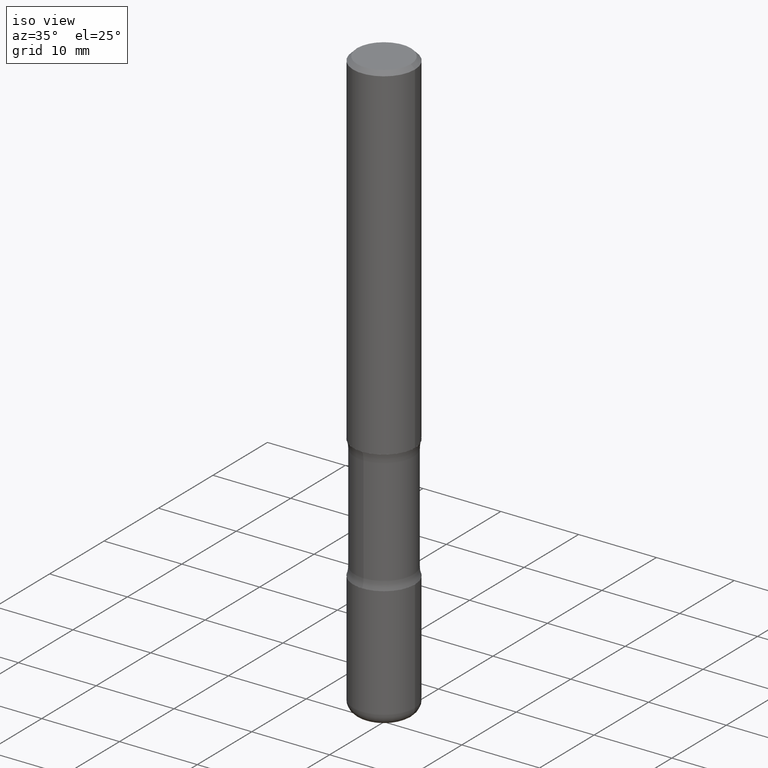
[diagram: clean part render]
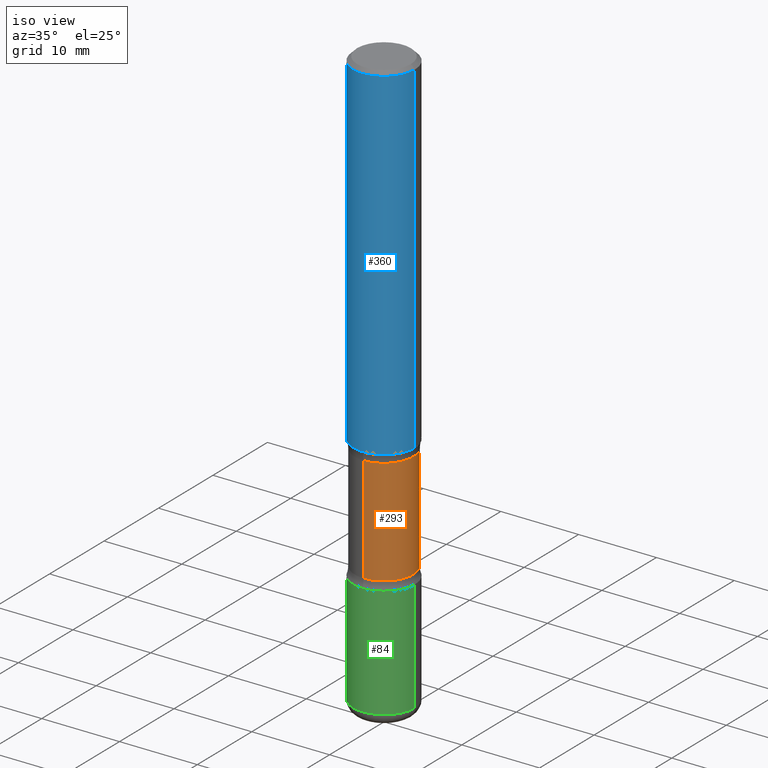
[diagram: same view with three faces highlighted in distinct colors, each labeled with its STEP entity id]
A machine part, iso view with three faces highlighted in distinct colors.
Their STEP definitions:

[orange] entity #293 — the highlighted cylindrical surface (edge-blend (fillet) strip) has radius 3.7703 mm, axis along (0, -0, -1).
#12 = CARTESIAN_POINT ( 'NONE',  ( 5.698202263795362163E-29, -8.145282435205020267E-15, -2.331501840915390478 ) ) ;
#18 = AXIS2_PLACEMENT_3D ( 'NONE', #234, #329, #29 ) ;
#23 = VERTEX_POINT ( 'NONE', #258 ) ;
#29 = DIRECTION ( 'NONE',  ( 6.982962677686266711E-15, 1.000000000000000000, -3.680805717779217644E-15 ) ) ;
#42 = CARTESIAN_POINT ( 'NONE',  ( -1.045153991847964360E-15, -0.1484375000000063560, -1.793498159084609522 ) ) ;
#44 = ORIENTED_EDGE ( 'NONE', *, *, #128, .F. ) ;
#72 = CARTESIAN_POINT ( 'NONE',  ( -1.045153991847949569E-15, -0.1484375000000081601, -2.331501840915390034 ) ) ;
#74 = DIRECTION ( 'NONE',  ( 6.982962677686265133E-15, 1.000000000000000000, -3.680805717779217644E-15 ) ) ;
#90 = EDGE_CURVE ( 'NONE', #301, #92, #218, .T. ) ;
#92 = VERTEX_POINT ( 'NONE', #42 ) ;
#128 = EDGE_CURVE ( 'NONE', #301, #23, #221, .T. ) ;
#151 = DIRECTION ( 'NONE',  ( 2.523926373086038410E-29, -3.379125637513666367E-15, -1.000000000000000000 ) ) ;
#159 = CYLINDRICAL_SURFACE ( 'NONE', #18, 0.1484375000000000000 ) ;
#202 = FACE_OUTER_BOUND ( 'NONE', #209, .T. ) ;
#209 = EDGE_LOOP ( 'NONE', ( #491, #323, #324, #44 ) ) ;
#217 = DIRECTION ( 'NONE',  ( 2.523926373086038410E-29, -3.379125637513666367E-15, -1.000000000000000000 ) ) ;
#218 = CIRCLE ( 'NONE', #495, 0.1484375000000000278 ) ;
#221 = LINE ( 'NONE', #274, #474 ) ;
#227 = EDGE_CURVE ( 'NONE', #23, #244, #517, .T. ) ;
#230 = EDGE_CURVE ( 'NONE', #92, #244, #403, .T. ) ;
#234 = CARTESIAN_POINT ( 'NONE',  ( 7.385442397868472267E-29, -1.040422170319851125E-14, -2.999999999999999556 ) ) ;
#244 = VERTEX_POINT ( 'NONE', #72 ) ;
#258 = CARTESIAN_POINT ( 'NONE',  ( 1.036533522469112013E-15, 0.1484374999999918399, -2.331501840915391366 ) ) ;
#274 = CARTESIAN_POINT ( 'NONE',  ( 1.036533522469128973E-15, 0.1484374999999896194, -3.000000000000000444 ) ) ;
#293 = ADVANCED_FACE ( 'NONE', ( #202 ), #159, .T. ) ;
#301 = VERTEX_POINT ( 'NONE', #500 ) ;
#311 = DIRECTION ( 'NONE',  ( 2.523926373086038410E-29, -3.379125637513666367E-15, -1.000000000000000000 ) ) ;
#323 = ORIENTED_EDGE ( 'NONE', *, *, #230, .T. ) ;
#324 = ORIENTED_EDGE ( 'NONE', *, *, #227, .F. ) ;
#329 = DIRECTION ( 'NONE',  ( 2.523926373086038410E-29, -3.379125637513666367E-15, -1.000000000000000000 ) ) ;
#377 = VECTOR ( 'NONE', #547, 39.37007874015748143 ) ;
#382 = DIRECTION ( 'NONE',  ( 6.982962677686265133E-15, 1.000000000000000000, -3.680805717779216855E-15 ) ) ;
#403 = LINE ( 'NONE', #456, #377 ) ;
#456 = CARTESIAN_POINT ( 'NONE',  ( -1.018355171544137761E-15, -0.1484375000000104083, -2.999999999999999112 ) ) ;
#474 = VECTOR ( 'NONE', #311, 39.37007874015748143 ) ;
#491 = ORIENTED_EDGE ( 'NONE', *, *, #90, .T. ) ;
#495 = AXIS2_PLACEMENT_3D ( 'NONE', #554, #217, #382 ) ;
#500 = CARTESIAN_POINT ( 'NONE',  ( 1.036533522469098602E-15, 0.1484374999999936995, -1.793498159084610633 ) ) ;
#510 = AXIS2_PLACEMENT_3D ( 'NONE', #12, #151, #74 ) ;
#517 = CIRCLE ( 'NONE', #510, 0.1484375000000000000 ) ;
#547 = DIRECTION ( 'NONE',  ( 2.523926373086038410E-29, -3.379125637513666367E-15, -1.000000000000000000 ) ) ;
#554 = CARTESIAN_POINT ( 'NONE',  ( 4.340320582405264943E-29, -6.327300400853882778E-15, -1.793498159084609966 ) ) ;

[blue] entity #360 — the highlighted cylindrical surface (partial cylindrical patch) has radius 3.9687 mm, axis along (-0, 0, 1).
#22 = CARTESIAN_POINT ( 'NONE',  ( 4.890937612370273159E-31, -6.982962677686291609E-17, -0.02000000000000000042 ) ) ;
#26 = VERTEX_POINT ( 'NONE', #294 ) ;
#30 = VECTOR ( 'NONE', #549, 39.37007874015748143 ) ;
#31 = ORIENTED_EDGE ( 'NONE', *, *, #147, .F. ) ;
#32 = LINE ( 'NONE', #332, #479 ) ;
#35 = CARTESIAN_POINT ( 'NONE',  ( -0.1562500000000000833, -1.979737960251025472E-15, -1.750000000000000444 ) ) ;
#41 = EDGE_CURVE ( 'NONE', #286, #401, #421, .T. ) ;
#48 = CARTESIAN_POINT ( 'NONE',  ( 4.279570410823989605E-29, -6.110092342975506249E-15, -1.750000000000000444 ) ) ;
#89 = CYLINDRICAL_SURFACE ( 'NONE', #461, 0.1562499999999999722 ) ;
#119 = CARTESIAN_POINT ( 'NONE',  ( -0.1562499999999999722, 1.110223024625156343E-15, -7.685836078523288357E-30 ) ) ;
#124 = DIRECTION ( 'NONE',  ( -2.445468806185136597E-29, 3.491481338843145583E-15, 1.000000000000000000 ) ) ;
#147 = EDGE_CURVE ( 'NONE', #26, #363, #485, .T. ) ;
#153 = ORIENTED_EDGE ( 'NONE', *, *, #41, .T. ) ;
#189 = DIRECTION ( 'NONE',  ( -2.445468806185136597E-29, 3.491481338843145583E-15, 1.000000000000000000 ) ) ;
#201 = DIRECTION ( 'NONE',  ( 1.000000000000000000, -6.982962677686265133E-15, 0.000000000000000000 ) ) ;
#236 = ORIENTED_EDGE ( 'NONE', *, *, #271, .F. ) ;
#237 = EDGE_CURVE ( 'NONE', #401, #363, #32, .T. ) ;
#271 = EDGE_CURVE ( 'NONE', #286, #26, #285, .T. ) ;
#285 = LINE ( 'NONE', #119, #30 ) ;
#286 = VERTEX_POINT ( 'NONE', #35 ) ;
#294 = CARTESIAN_POINT ( 'NONE',  ( -0.1562499999999998612, 1.021258291611615284E-15, -0.02000000000000000042 ) ) ;
#298 = DIRECTION ( 'NONE',  ( -2.445468806185136597E-29, 3.491481338843145583E-15, 1.000000000000000000 ) ) ;
#325 = AXIS2_PLACEMENT_3D ( 'NONE', #48, #124, #201 ) ;
#332 = CARTESIAN_POINT ( 'NONE',  ( 0.1562499999999999722, -1.091087918388478976E-15, 7.619026212181148976E-30 ) ) ;
#338 = ORIENTED_EDGE ( 'NONE', *, *, #237, .T. ) ;
#360 = ADVANCED_FACE ( 'NONE', ( #513 ), #89, .T. ) ;
#363 = VERTEX_POINT ( 'NONE', #415 ) ;
#373 = CARTESIAN_POINT ( 'NONE',  ( 0.1562500000000000833, -7.201180261363985422E-15, -1.750000000000000444 ) ) ;
#401 = VERTEX_POINT ( 'NONE', #373 ) ;
#415 = CARTESIAN_POINT ( 'NONE',  ( 0.1562499999999998612, -1.141782438928663922E-15, -0.02000000000000000042 ) ) ;
#421 = CIRCLE ( 'NONE', #325, 0.1562500000000000833 ) ;
#424 = CARTESIAN_POINT ( 'NONE',  ( 0.000000000000000000, 0.000000000000000000, 0.000000000000000000 ) ) ;
#442 = DIRECTION ( 'NONE',  ( 1.000000000000000000, -6.982962677686266711E-15, 0.000000000000000000 ) ) ;
#459 = DIRECTION ( 'NONE',  ( 1.000000000000000000, -6.982962677686266711E-15, 4.876176775795936353E-29 ) ) ;
#461 = AXIS2_PLACEMENT_3D ( 'NONE', #424, #298, #459 ) ;
#479 = VECTOR ( 'NONE', #503, 39.37007874015748143 ) ;
#485 = CIRCLE ( 'NONE', #535, 0.1562499999999998612 ) ;
#487 = EDGE_LOOP ( 'NONE', ( #236, #153, #338, #31 ) ) ;
#503 = DIRECTION ( 'NONE',  ( -2.445468806185136877E-29, 3.491481338843145188E-15, 1.000000000000000000 ) ) ;
#513 = FACE_OUTER_BOUND ( 'NONE', #487, .T. ) ;
#535 = AXIS2_PLACEMENT_3D ( 'NONE', #22, #189, #442 ) ;
#549 = DIRECTION ( 'NONE',  ( -2.445468806185136877E-29, 3.491481338843145188E-15, 1.000000000000000000 ) ) ;

[green] entity #84 — the highlighted cylindrical surface (partial cylindrical patch) has radius 3.9688 mm, axis along (-0, 0, 1).
#1 = LINE ( 'NONE', #251, #518 ) ;
#9 = CARTESIAN_POINT ( 'NONE',  ( 7.189678290184302760E-29, -1.026495513619885119E-14, -2.940000000000000835 ) ) ;
#50 = AXIS2_PLACEMENT_3D ( 'NONE', #9, #110, #180 ) ;
#84 = ADVANCED_FACE ( 'NONE', ( #249 ), #137, .T. ) ;
#98 = ORIENTED_EDGE ( 'NONE', *, *, #192, .T. ) ;
#110 = DIRECTION ( 'NONE',  ( -2.445468806185136597E-29, 3.491481338843145583E-15, 1.000000000000000000 ) ) ;
#126 = DIRECTION ( 'NONE',  ( -2.445468806185136597E-29, 3.491481338843145583E-15, 1.000000000000000000 ) ) ;
#137 = CYLINDRICAL_SURFACE ( 'NONE', #300, 0.1562500000000001388 ) ;
#149 = EDGE_LOOP ( 'NONE', ( #539, #98, #559, #167 ) ) ;
#167 = ORIENTED_EDGE ( 'NONE', *, *, #416, .F. ) ;
#169 = LINE ( 'NONE', #511, #176 ) ;
#174 = DIRECTION ( 'NONE',  ( 1.000000000000000000, -6.982962677686270655E-15, 0.000000000000000000 ) ) ;
#176 = VECTOR ( 'NONE', #336, 39.37007874015748143 ) ;
#180 = DIRECTION ( 'NONE',  ( 1.000000000000000000, -6.982962677686268288E-15, 0.000000000000000000 ) ) ;
#187 = VERTEX_POINT ( 'NONE', #525 ) ;
#192 = EDGE_CURVE ( 'NONE', #451, #187, #233, .T. ) ;
#198 = CARTESIAN_POINT ( 'NONE',  ( 0.1562500000000001110, -9.383356098140953236E-15, -2.375000000000000444 ) ) ;
#208 = CIRCLE ( 'NONE', #514, 0.1562500000000001110 ) ;
#233 = CIRCLE ( 'NONE', #50, 0.1562500000000001665 ) ;
#249 = FACE_OUTER_BOUND ( 'NONE', #149, .T. ) ;
#251 = CARTESIAN_POINT ( 'NONE',  ( -0.1562500000000001388, 1.110223024625157526E-15, -7.685836078523296765E-30 ) ) ;
#296 = CARTESIAN_POINT ( 'NONE',  ( 5.807988414689700538E-29, -8.292268179752471696E-15, -2.375000000000000444 ) ) ;
#297 = VERTEX_POINT ( 'NONE', #198 ) ;
#300 = AXIS2_PLACEMENT_3D ( 'NONE', #413, #126, #498 ) ;
#331 = EDGE_CURVE ( 'NONE', #187, #297, #169, .T. ) ;
#336 = DIRECTION ( 'NONE',  ( -2.445468806185136877E-29, 3.491481338843145188E-15, 1.000000000000000000 ) ) ;
#340 = DIRECTION ( 'NONE',  ( -2.445468806185136877E-29, 3.491481338843145188E-15, 1.000000000000000000 ) ) ;
#349 = CARTESIAN_POINT ( 'NONE',  ( -0.1562500000000001388, -9.154732111573694652E-15, -2.940000000000000835 ) ) ;
#378 = CARTESIAN_POINT ( 'NONE',  ( -0.1562500000000001110, -8.168388633350503326E-15, -2.375000000000000444 ) ) ;
#388 = VERTEX_POINT ( 'NONE', #378 ) ;
#393 = EDGE_CURVE ( 'NONE', #451, #388, #1, .T. ) ;
#413 = CARTESIAN_POINT ( 'NONE',  ( 0.000000000000000000, 0.000000000000000000, 0.000000000000000000 ) ) ;
#416 = EDGE_CURVE ( 'NONE', #388, #297, #208, .T. ) ;
#451 = VERTEX_POINT ( 'NONE', #349 ) ;
#462 = DIRECTION ( 'NONE',  ( -2.445468806185136597E-29, 3.491481338843145583E-15, 1.000000000000000000 ) ) ;
#498 = DIRECTION ( 'NONE',  ( 1.000000000000000000, -6.982962677686266711E-15, 4.876176775795936353E-29 ) ) ;
#511 = CARTESIAN_POINT ( 'NONE',  ( 0.1562500000000001388, -1.091087918388480160E-15, 7.619026212181157383E-30 ) ) ;
#514 = AXIS2_PLACEMENT_3D ( 'NONE', #296, #462, #174 ) ;
#518 = VECTOR ( 'NONE', #340, 39.37007874015748143 ) ;
#525 = CARTESIAN_POINT ( 'NONE',  ( 0.1562500000000001388, -1.135604305458733115E-14, -2.940000000000000835 ) ) ;
#539 = ORIENTED_EDGE ( 'NONE', *, *, #393, .F. ) ;
#559 = ORIENTED_EDGE ( 'NONE', *, *, #331, .T. ) ;